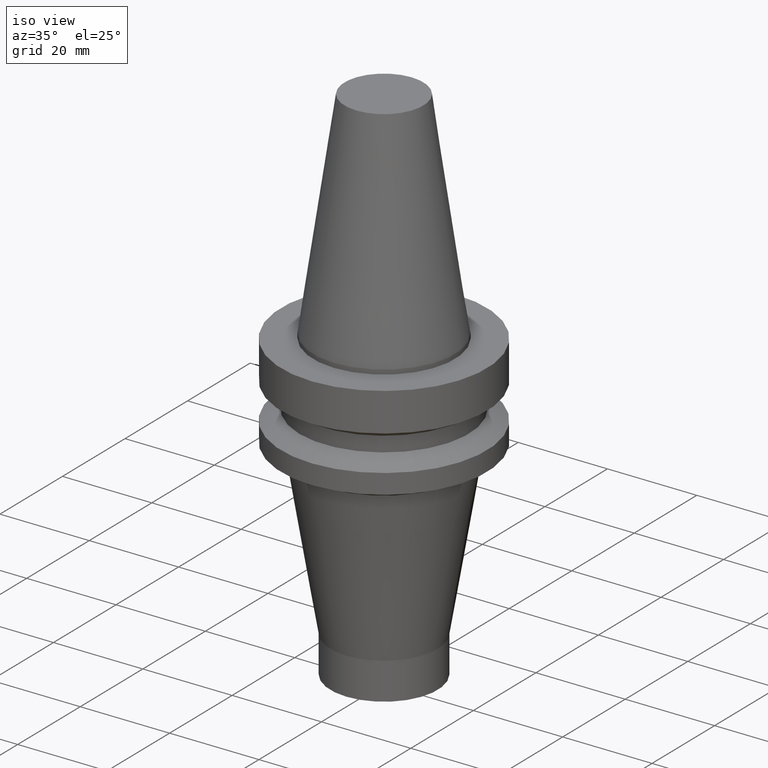
[diagram: clean part render]
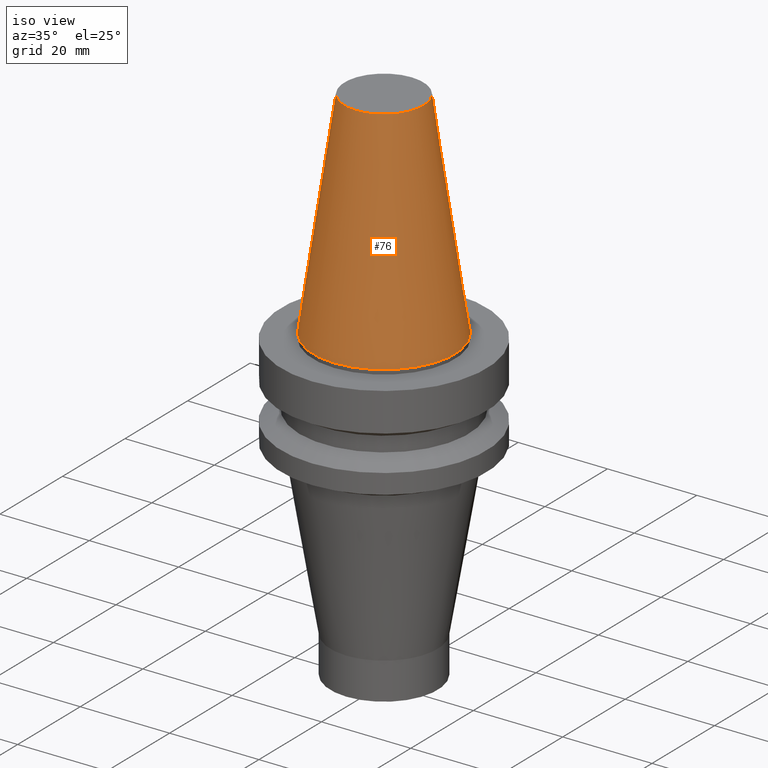
[diagram: same view with one face highlighted and labeled with its STEP entity id]
A machine part, iso view. The second image highlights one B-rep face of the part: STEP entity #76.
In plain terms, the highlighted conical surface has half-angle 8.297 deg.
Its self-contained STEP definition (entity closure, byte-faithful):
#76=ADVANCED_FACE('',(#92,#93),#94,.T.);
#92=FACE_BOUND('',#132,.T.);
#93=FACE_BOUND('',#133,.T.);
#94=CONICAL_SURFACE('',#134,12.3457500009933,0.14481587001362);
#132=EDGE_LOOP('',(#174));
#133=EDGE_LOOP('',(#175));
#134=AXIS2_PLACEMENT_3D('',#176,#177,#178);
#174=ORIENTED_EDGE('',*,*,#239,.F.);
#175=ORIENTED_EDGE('',*,*,#238,.T.);
#176=CARTESIAN_POINT('',(-1.4818226269683E-015,-2.96364525393659E-015,24.2));
#177=DIRECTION('',(6.12323399573677E-017,1.22464679914735E-016,-1.0));
#178=DIRECTION('',(-1.23259516440783E-032,1.0,1.22464679914735E-016));
#238=EDGE_CURVE('',#251,#251,#252,.T.);
#239=EDGE_CURVE('',#253,#253,#254,.T.);
#251=VERTEX_POINT('',#277);
#252=CIRCLE('',#278,8.81650000198667);
#253=VERTEX_POINT('',#279);
#254=CIRCLE('',#280,15.875);
#277=CARTESIAN_POINT('',(-2.96364525393659E-015,8.81650000198667,48.4));
#278=AXIS2_PLACEMENT_3D('',#303,#304,#305);
#279=CARTESIAN_POINT('',(-1.95674482349743E-031,15.875,1.94412679364642E-015));
#280=AXIS2_PLACEMENT_3D('',#306,#307,#308);
#303=CARTESIAN_POINT('',(-2.9636452539366E-015,-5.92729050787319E-015,48.4));
#304=DIRECTION('',(6.12323399573677E-017,1.22464679914735E-016,-1.0));
#305=DIRECTION('',(-1.23259516440783E-032,1.0,1.22464679914735E-016));
#306=CARTESIAN_POINT('',(0.0,0.0,0.0));
#307=DIRECTION('',(6.12323399573677E-017,1.22464679914735E-016,-1.0));
#308=DIRECTION('',(-1.23259516440783E-032,1.0,1.22464679914735E-016));